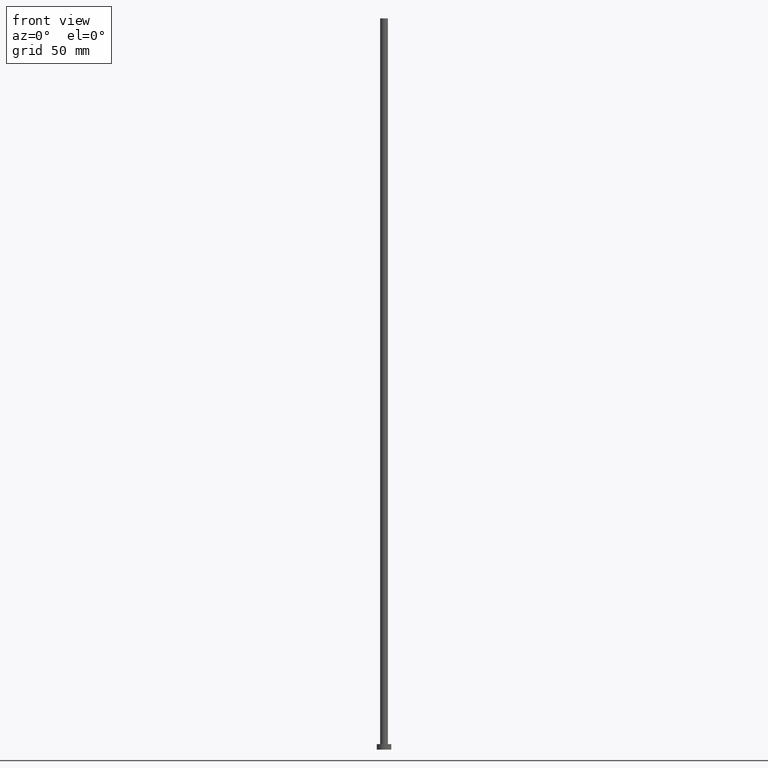
[diagram: clean part render]
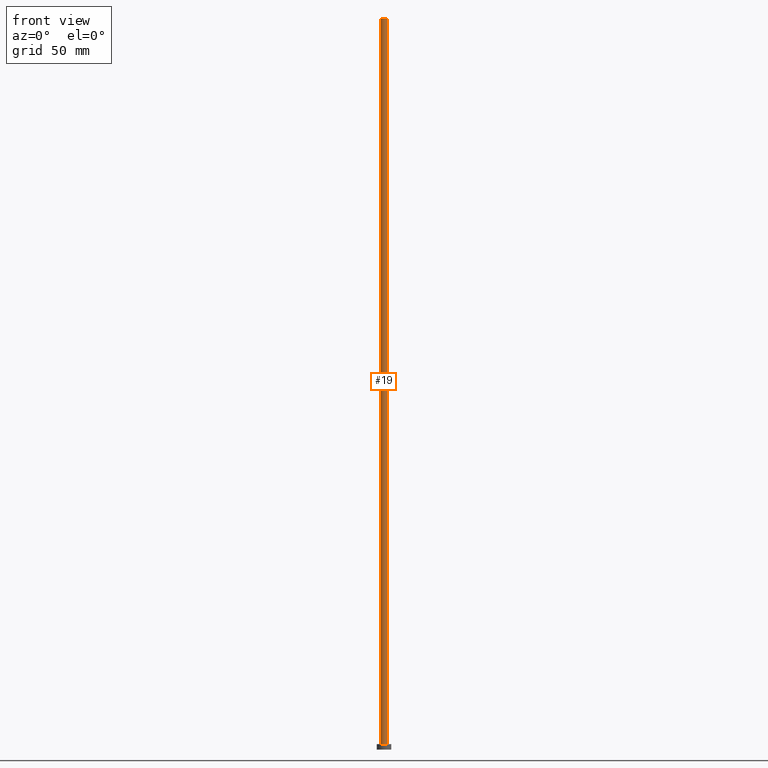
[diagram: same view with one face highlighted and labeled with its STEP entity id]
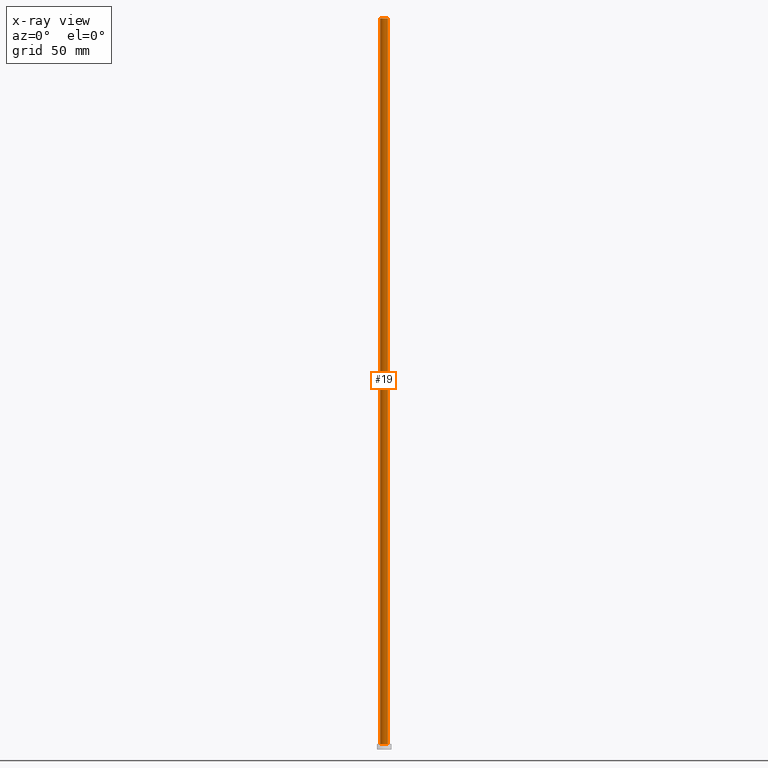
[diagram: x-ray of the same camera — body ghosted, the highlighted face saturated]
A machine part, front view. The second image highlights one B-rep face of the part: STEP entity #19.
The next image is the same camera in x-ray: the body ghosted, the highlighted face saturated — about 0% of this face is hidden behind the body in this view.
In plain terms, the highlighted cylindrical surface (edge-blend (fillet) strip) has radius 2.1 mm, axis along (-0, -0, -1).
Its self-contained STEP definition (entity closure, byte-faithful):
#4 = AXIS2_PLACEMENT_3D ( 'NONE', #163, #43, #201 ) ;
#9 = AXIS2_PLACEMENT_3D ( 'NONE', #212, #236, #94 ) ;
#19 = ADVANCED_FACE ( 'NONE', ( #57 ), #140, .T. ) ;
#43 = DIRECTION ( 'NONE',  ( 0.000000000000000000, 0.000000000000000000, 1.000000000000000000 ) ) ;
#49 = CARTESIAN_POINT ( 'NONE',  ( -2.100000000000000089, 0.000000000000000000, 400.0000000000000000 ) ) ;
#57 = FACE_OUTER_BOUND ( 'NONE', #205, .T. ) ;
#65 = EDGE_CURVE ( 'NONE', #110, #254, #233, .T. ) ;
#77 = DIRECTION ( 'NONE',  ( -0.000000000000000000, -0.000000000000000000, -1.000000000000000000 ) ) ;
#81 = CARTESIAN_POINT ( 'NONE',  ( 2.100000000000000089, 2.571758278209441957E-16, 400.0000000000000000 ) ) ;
#83 = EDGE_CURVE ( 'NONE', #112, #110, #194, .T. ) ;
#87 = CIRCLE ( 'NONE', #4, 2.100000000000000089 ) ;
#93 = ORIENTED_EDGE ( 'NONE', *, *, #207, .F. ) ;
#94 = DIRECTION ( 'NONE',  ( -1.000000000000000000, 0.000000000000000000, 0.000000000000000000 ) ) ;
#95 = CARTESIAN_POINT ( 'NONE',  ( -2.100000000000000089, 0.000000000000000000, 400.0000000000000000 ) ) ;
#96 = DIRECTION ( 'NONE',  ( 1.000000000000000000, 0.000000000000000000, 0.000000000000000000 ) ) ;
#103 = CARTESIAN_POINT ( 'NONE',  ( 2.100000000000000089, 2.571758278209441957E-16, 3.000000000000000000 ) ) ;
#110 = VERTEX_POINT ( 'NONE', #224 ) ;
#112 = VERTEX_POINT ( 'NONE', #49 ) ;
#133 = EDGE_CURVE ( 'NONE', #151, #254, #241, .T. ) ;
#134 = ORIENTED_EDGE ( 'NONE', *, *, #83, .T. ) ;
#140 = CYLINDRICAL_SURFACE ( 'NONE', #9, 2.100000000000000089 ) ;
#148 = CARTESIAN_POINT ( 'NONE',  ( 2.100000000000000089, 2.571758278209441957E-16, 400.0000000000000000 ) ) ;
#149 = DIRECTION ( 'NONE',  ( -0.000000000000000000, -0.000000000000000000, -1.000000000000000000 ) ) ;
#151 = VERTEX_POINT ( 'NONE', #81 ) ;
#153 = ORIENTED_EDGE ( 'NONE', *, *, #133, .F. ) ;
#163 = CARTESIAN_POINT ( 'NONE',  ( 0.000000000000000000, 0.000000000000000000, 400.0000000000000000 ) ) ;
#188 = ORIENTED_EDGE ( 'NONE', *, *, #65, .T. ) ;
#194 = LINE ( 'NONE', #95, #220 ) ;
#196 = CARTESIAN_POINT ( 'NONE',  ( 0.000000000000000000, 0.000000000000000000, 3.000000000000000000 ) ) ;
#201 = DIRECTION ( 'NONE',  ( 1.000000000000000000, 0.000000000000000000, 0.000000000000000000 ) ) ;
#205 = EDGE_LOOP ( 'NONE', ( #153, #93, #134, #188 ) ) ;
#207 = EDGE_CURVE ( 'NONE', #112, #151, #87, .T. ) ;
#209 = DIRECTION ( 'NONE',  ( 0.000000000000000000, 0.000000000000000000, 1.000000000000000000 ) ) ;
#212 = CARTESIAN_POINT ( 'NONE',  ( 0.000000000000000000, 0.000000000000000000, 400.0000000000000000 ) ) ;
#218 = VECTOR ( 'NONE', #149, 1000.000000000000000 ) ;
#220 = VECTOR ( 'NONE', #77, 1000.000000000000000 ) ;
#224 = CARTESIAN_POINT ( 'NONE',  ( -2.100000000000000089, 0.000000000000000000, 3.000000000000000000 ) ) ;
#233 = CIRCLE ( 'NONE', #253, 2.100000000000000089 ) ;
#236 = DIRECTION ( 'NONE',  ( -0.000000000000000000, -0.000000000000000000, -1.000000000000000000 ) ) ;
#241 = LINE ( 'NONE', #148, #218 ) ;
#253 = AXIS2_PLACEMENT_3D ( 'NONE', #196, #209, #96 ) ;
#254 = VERTEX_POINT ( 'NONE', #103 ) ;